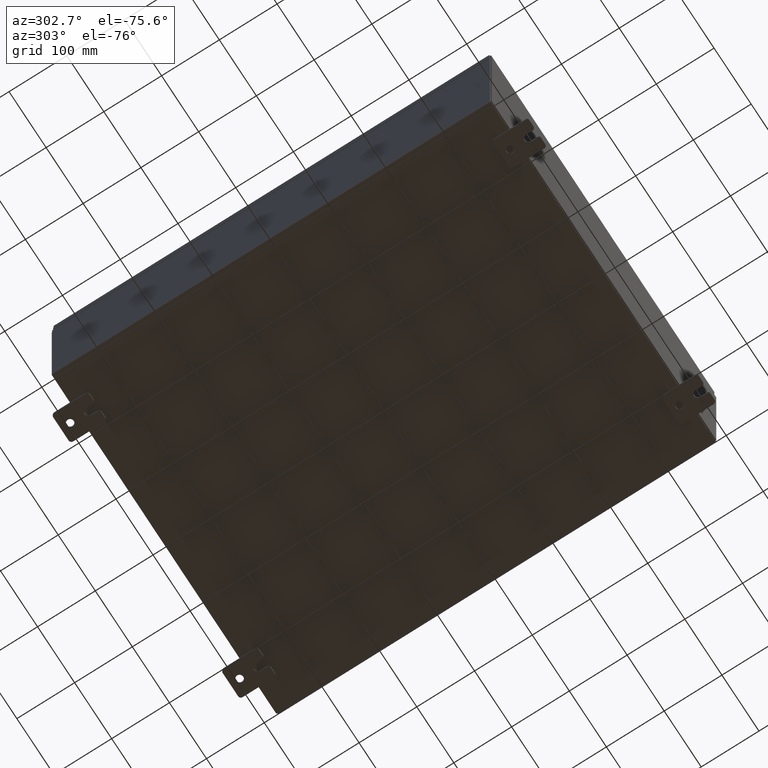
[diagram: clean part render]
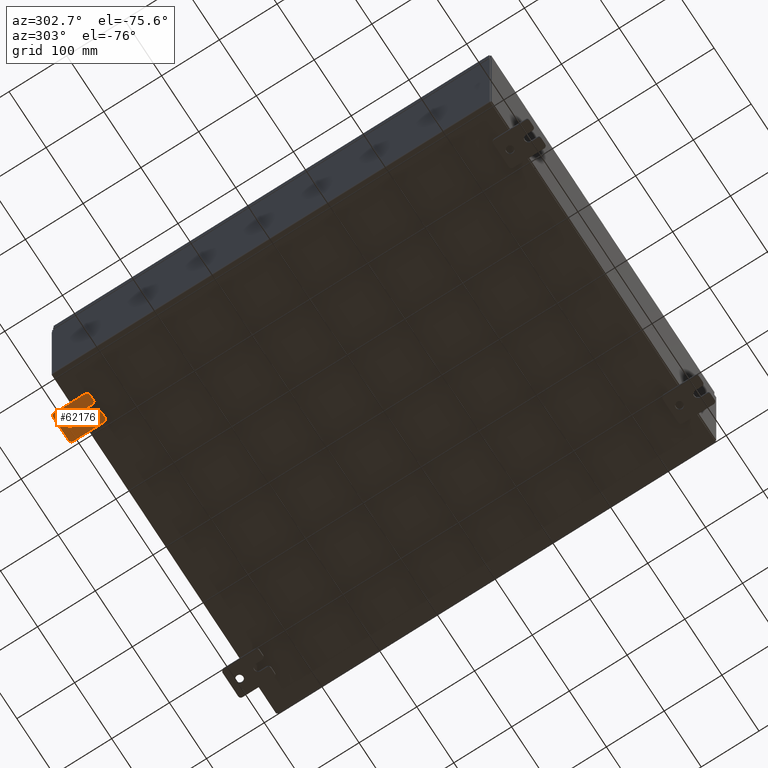
[diagram: same view with one face highlighted and labeled with its STEP entity id]
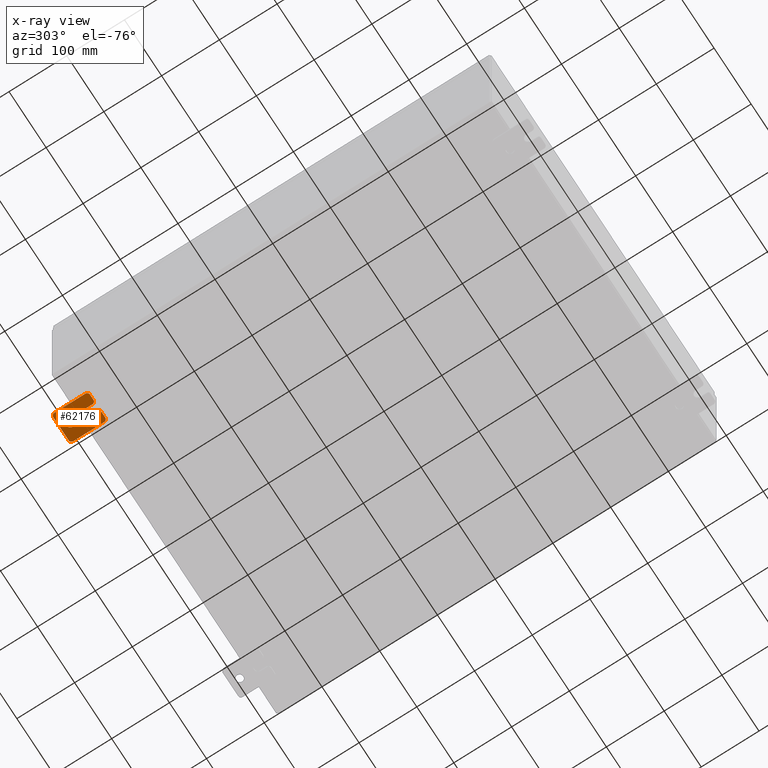
[diagram: x-ray of the same camera — body ghosted, the highlighted face saturated]
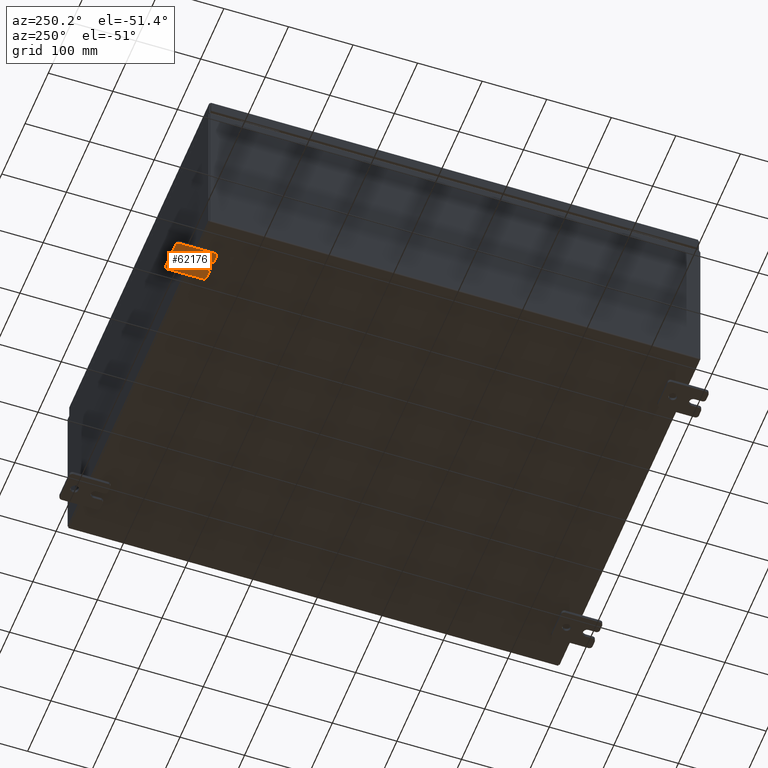
[diagram: same view with one face highlighted and labeled with its STEP entity id]
A machine part, auxiliary view. The second image highlights one B-rep face of the part: STEP entity #62176.
The next image is the same camera in x-ray: the body ghosted, the highlighted face saturated — about 0% of this face is hidden behind the body in this view.
A second angle (auxiliary view) of the same face is appended — the face is thin or edge-on in the first view.
In plain terms, the highlighted planar face has unit normal (0, 0, 1).
Its self-contained STEP definition (entity closure, byte-faithful):
#374 = ORIENTED_EDGE ( 'NONE', *, *, #29772, .T. ) ;
#427 = CIRCLE ( 'NONE', #10709, 0.2499999999999999200 ) ;
#1427 = AXIS2_PLACEMENT_3D ( 'NONE', #54958, #4538, #31204 ) ;
#1960 = CIRCLE ( 'NONE', #24511, 0.1900000000000011100 ) ;
#2434 = ORIENTED_EDGE ( 'NONE', *, *, #48936, .F. ) ;
#2620 = ORIENTED_EDGE ( 'NONE', *, *, #35389, .F. ) ;
#2788 = EDGE_CURVE ( 'NONE', #44890, #25598, #42414, .T. ) ;
#3155 = CARTESIAN_POINT ( 'NONE',  ( -0.1879999999999997800, -1.250000000000005600, -1.000000000000006200 ) ) ;
#4411 = EDGE_CURVE ( 'NONE', #62870, #14577, #35068, .T. ) ;
#4538 = DIRECTION ( 'NONE',  ( -1.000000000000000000, -0.0000000000000000000, 0.0000000000000000000 ) ) ;
#4834 = ORIENTED_EDGE ( 'NONE', *, *, #2788, .F. ) ;
#5168 = CARTESIAN_POINT ( 'NONE',  ( -0.1880000000000004700, -1.060000000000003400, -0.2499999999999994400 ) ) ;
#5798 = EDGE_CURVE ( 'NONE', #22748, #57081, #26620, .T. ) ;
#5935 = VECTOR ( 'NONE', #52695, 39.37007874015748100 ) ;
#6024 = DIRECTION ( 'NONE',  ( -1.000000000000000000, -0.0000000000000000000, 0.0000000000000000000 ) ) ;
#6175 = ORIENTED_EDGE ( 'NONE', *, *, #26334, .T. ) ;
#6201 = CARTESIAN_POINT ( 'NONE',  ( -0.1880000000000010000, 0.6249999999999992200, -7.703811342100550500E-020 ) ) ;
#6605 = LINE ( 'NONE', #45254, #19814 ) ;
#7321 = AXIS2_PLACEMENT_3D ( 'NONE', #26987, #21803, #36910 ) ;
#7538 = LINE ( 'NONE', #47717, #5935 ) ;
#8000 = CARTESIAN_POINT ( 'NONE',  ( -0.1879999999999997800, -1.250000000000004700, -0.4400000000000002200 ) ) ;
#9768 = DIRECTION ( 'NONE',  ( -1.000000000000000000, 6.523827964459549700E-016, 5.163192708025532000E-017 ) ) ;
#10706 = LINE ( 'NONE', #52826, #63356 ) ;
#10709 = AXIS2_PLACEMENT_3D ( 'NONE', #6201, #40810, #11202 ) ;
#10807 = CARTESIAN_POINT ( 'NONE',  ( -0.1880000000000001900, -0.6249999999999992200, 0.2500000000000005000 ) ) ;
#10841 = DIRECTION ( 'NONE',  ( 0.0000000000000000000, -1.639108796198553600E-015, -1.000000000000000000 ) ) ;
#11202 = DIRECTION ( 'NONE',  ( 0.0000000000000000000, 0.0000000000000000000, -1.000000000000000000 ) ) ;
#11275 = CARTESIAN_POINT ( 'NONE',  ( -0.1879999999999997800, 1.249999999999997600, 0.9999999999999951200 ) ) ;
#11513 = CARTESIAN_POINT ( 'NONE',  ( -0.1879999999999997800, -1.060000000000002100, 0.4400000000000016700 ) ) ;
#12080 = EDGE_CURVE ( 'NONE', #57412, #23712, #10706, .T. ) ;
#12317 = DIRECTION ( 'NONE',  ( 1.000000000000000000, -0.0000000000000000000, -5.163192708025532000E-017 ) ) ;
#12320 = CARTESIAN_POINT ( 'NONE',  ( -0.1879999999999997800, -1.060000000000001600, 0.8099999999999978300 ) ) ;
#12898 = ORIENTED_EDGE ( 'NONE', *, *, #57688, .F. ) ;
#12905 = CARTESIAN_POINT ( 'NONE',  ( -0.1879999999999997800, 1.059999999999993400, -1.000000000000010000 ) ) ;
#13832 = VECTOR ( 'NONE', #37798, 39.37007874015748100 ) ;
#14577 = VERTEX_POINT ( 'NONE', #5168 ) ;
#14708 = EDGE_CURVE ( 'NONE', #61397, #14577, #1960, .T. ) ;
#15571 = EDGE_CURVE ( 'NONE', #24017, #21118, #6605, .T. ) ;
#15707 = CARTESIAN_POINT ( 'NONE',  ( -0.1880000000000001900, -0.6249999999999992200, -0.2499999999999993900 ) ) ;
#16071 = ORIENTED_EDGE ( 'NONE', *, *, #14708, .T. ) ;
#16433 = ORIENTED_EDGE ( 'NONE', *, *, #15571, .F. ) ;
#16549 = DIRECTION ( 'NONE',  ( 0.0000000000000000000, 0.0000000000000000000, -1.000000000000000000 ) ) ;
#16580 = CARTESIAN_POINT ( 'NONE',  ( -0.1879999999999997800, 1.059999999999996500, 0.9999999999999953400 ) ) ;
#17131 = CARTESIAN_POINT ( 'NONE',  ( -0.1880000000000001900, -0.6249999999999992200, -0.2499999999999998600 ) ) ;
#17330 = DIRECTION ( 'NONE',  ( 0.0000000000000000000, 7.189073667537492800E-016, -1.000000000000000000 ) ) ;
#17558 = CARTESIAN_POINT ( 'NONE',  ( -0.1879999999999997800, 1.249999999999994700, -0.8100000000000092700 ) ) ;
#17788 = AXIS2_PLACEMENT_3D ( 'NONE', #22072, #56621, #27035 ) ;
#19814 = VECTOR ( 'NONE', #30780, 39.37007874015748100 ) ;
#20157 = ORIENTED_EDGE ( 'NONE', *, *, #12080, .F. ) ;
#21118 = VERTEX_POINT ( 'NONE', #36392 ) ;
#21306 = ORIENTED_EDGE ( 'NONE', *, *, #56827, .T. ) ;
#21803 = DIRECTION ( 'NONE',  ( 1.000000000000000000, 0.0000000000000000000, -0.0000000000000000000 ) ) ;
#21969 = VECTOR ( 'NONE', #35895, 39.37007874015748100 ) ;
#22072 = CARTESIAN_POINT ( 'NONE',  ( -0.1879999999999997800, 1.059999999999996300, 0.8099999999999938400 ) ) ;
#22155 = CARTESIAN_POINT ( 'NONE',  ( -0.1880000000000010000, 0.6249999999999992200, 0.2499999999999999200 ) ) ;
#22276 = CARTESIAN_POINT ( 'NONE',  ( -0.1879999999999997800, -1.060000000000004500, -1.000000000000006400 ) ) ;
#22748 = VERTEX_POINT ( 'NONE', #22276 ) ;
#22977 = ORIENTED_EDGE ( 'NONE', *, *, #4411, .F. ) ;
#23252 = DIRECTION ( 'NONE',  ( 6.556435184794182400E-016, 1.000000000000000000, 0.0000000000000000000 ) ) ;
#23312 = VERTEX_POINT ( 'NONE', #22155 ) ;
#23712 = VERTEX_POINT ( 'NONE', #10807 ) ;
#24017 = VERTEX_POINT ( 'NONE', #17558 ) ;
#24511 = AXIS2_PLACEMENT_3D ( 'NONE', #35673, #6024, #40655 ) ;
#25598 = VERTEX_POINT ( 'NONE', #32067 ) ;
#26334 = EDGE_CURVE ( 'NONE', #31571, #23312, #45483, .T. ) ;
#26620 = CIRCLE ( 'NONE', #1427, 0.1900000000000011100 ) ;
#26987 = CARTESIAN_POINT ( 'NONE',  ( -0.1879999999999997800, 0.0000000000000000000, 0.0000000000000000000 ) ) ;
#27035 = DIRECTION ( 'NONE',  ( 0.0000000000000000000, 0.0000000000000000000, -1.000000000000000000 ) ) ;
#27170 = CIRCLE ( 'NONE', #57730, 0.1900000000000011100 ) ;
#28506 = EDGE_CURVE ( 'NONE', #59071, #21118, #50758, .T. ) ;
#28833 = ORIENTED_EDGE ( 'NONE', *, *, #60505, .T. ) ;
#29605 = DIRECTION ( 'NONE',  ( -1.000000000000000000, -0.0000000000000000000, 0.0000000000000000000 ) ) ;
#29772 = EDGE_CURVE ( 'NONE', #23312, #31571, #427, .T. ) ;
#30780 = DIRECTION ( 'NONE',  ( 0.0000000000000000000, 1.639108796198553600E-015, 1.000000000000000000 ) ) ;
#30963 = FACE_OUTER_BOUND ( 'NONE', #46139, .T. ) ;
#31204 = DIRECTION ( 'NONE',  ( 0.0000000000000000000, 0.0000000000000000000, -1.000000000000000000 ) ) ;
#31571 = VERTEX_POINT ( 'NONE', #52903 ) ;
#31961 = PLANE ( 'NONE',  #7321 ) ;
#32067 = CARTESIAN_POINT ( 'NONE',  ( -0.1879999999999997800, -1.250000000000003100, 0.4400000000000020000 ) ) ;
#35068 = LINE ( 'NONE', #15707, #21969 ) ;
#35389 = EDGE_CURVE ( 'NONE', #59071, #60490, #61993, .T. ) ;
#35578 = CIRCLE ( 'NONE', #63222, 0.1900000000000011400 ) ;
#35673 = CARTESIAN_POINT ( 'NONE',  ( -0.1879999999999997800, -1.060000000000003400, -0.4400000000000005000 ) ) ;
#35895 = DIRECTION ( 'NONE',  ( -6.556435184794182400E-016, -1.000000000000000000, -1.639108796198545600E-016 ) ) ;
#36392 = CARTESIAN_POINT ( 'NONE',  ( -0.1879999999999997800, 1.249999999999997300, 0.8099999999999935000 ) ) ;
#36910 = DIRECTION ( 'NONE',  ( -0.0000000000000000000, 0.0000000000000000000, -1.000000000000000000 ) ) ;
#37226 = VECTOR ( 'NONE', #40890, 39.37007874015748100 ) ;
#37798 = DIRECTION ( 'NONE',  ( 0.0000000000000000000, 1.000000000000000000, -1.639108796198558100E-015 ) ) ;
#38968 = AXIS2_PLACEMENT_3D ( 'NONE', #12320, #46894, #17330 ) ;
#39394 = CARTESIAN_POINT ( 'NONE',  ( -0.1880000000000001900, -0.6249999999999992200, 6.829619984160658000E-017 ) ) ;
#40655 = DIRECTION ( 'NONE',  ( 0.0000000000000000000, 0.0000000000000000000, -1.000000000000000000 ) ) ;
#40810 = DIRECTION ( 'NONE',  ( 1.000000000000000000, -0.0000000000000000000, -5.163192708025532000E-017 ) ) ;
#40890 = DIRECTION ( 'NONE',  ( 0.0000000000000000000, -1.000000000000000000, 1.639108796198558100E-015 ) ) ;
#41669 = ORIENTED_EDGE ( 'NONE', *, *, #47628, .F. ) ;
#41905 = CARTESIAN_POINT ( 'NONE',  ( -0.1880000000000010000, 0.6249999999999992200, -7.703811342100550500E-020 ) ) ;
#42414 = LINE ( 'NONE', #45426, #53988 ) ;
#42560 = FACE_BOUND ( 'NONE', #53303, .T. ) ;
#44345 = DIRECTION ( 'NONE',  ( -6.829619984160660000E-016, -1.000000000000000000, 0.0000000000000000000 ) ) ;
#44890 = VERTEX_POINT ( 'NONE', #62106 ) ;
#45254 = CARTESIAN_POINT ( 'NONE',  ( -0.1879999999999997800, 1.249999999999994200, -1.000000000000010400 ) ) ;
#45426 = CARTESIAN_POINT ( 'NONE',  ( -0.1879999999999997800, -1.250000000000002200, 0.9999999999999992200 ) ) ;
#45483 = CIRCLE ( 'NONE', #56178, 0.2499999999999999200 ) ;
#45685 = CARTESIAN_POINT ( 'NONE',  ( -0.1879999999999997800, -1.060000000000001200, 0.9999999999999988900 ) ) ;
#45724 = ORIENTED_EDGE ( 'NONE', *, *, #28506, .T. ) ;
#46114 = DIRECTION ( 'NONE',  ( -1.000000000000000000, -0.0000000000000000000, 0.0000000000000000000 ) ) ;
#46139 = EDGE_LOOP ( 'NONE', ( #4834, #50636, #2620, #45724, #16433, #21306, #41669, #58567, #2434, #16071, #22977, #12898, #20157, #28833 ) ) ;
#46890 = DIRECTION ( 'NONE',  ( 0.0000000000000000000, 0.0000000000000000000, -1.000000000000000000 ) ) ;
#46894 = DIRECTION ( 'NONE',  ( -1.000000000000000000, -0.0000000000000000000, 0.0000000000000000000 ) ) ;
#47628 = EDGE_CURVE ( 'NONE', #22748, #54864, #51685, .T. ) ;
#47717 = CARTESIAN_POINT ( 'NONE',  ( -0.1879999999999997800, -1.250000000000002200, 0.9999999999999992200 ) ) ;
#48911 = CIRCLE ( 'NONE', #61892, 0.2499999999999999200 ) ;
#48936 = EDGE_CURVE ( 'NONE', #61397, #57081, #7538, .T. ) ;
#50636 = ORIENTED_EDGE ( 'NONE', *, *, #53600, .T. ) ;
#50668 = CARTESIAN_POINT ( 'NONE',  ( -0.1879999999999997800, -1.250000000000005300, -0.8100000000000047200 ) ) ;
#50758 = CIRCLE ( 'NONE', #17788, 0.1900000000000011100 ) ;
#51685 = LINE ( 'NONE', #3155, #13832 ) ;
#52607 = CARTESIAN_POINT ( 'NONE',  ( -0.1880000000000004700, -1.060000000000002100, 0.2500000000000005000 ) ) ;
#52695 = DIRECTION ( 'NONE',  ( 0.0000000000000000000, -1.639108796198553600E-015, -1.000000000000000000 ) ) ;
#52826 = CARTESIAN_POINT ( 'NONE',  ( -0.1880000000000005800, -1.250000000000003800, 0.2500000000000005000 ) ) ;
#52903 = CARTESIAN_POINT ( 'NONE',  ( -0.1880000000000010000, 0.6249999999999992200, -0.2499999999999999200 ) ) ;
#53303 = EDGE_LOOP ( 'NONE', ( #6175, #374 ) ) ;
#53600 = EDGE_CURVE ( 'NONE', #44890, #60490, #61417, .T. ) ;
#53988 = VECTOR ( 'NONE', #10841, 39.37007874015748100 ) ;
#54864 = VERTEX_POINT ( 'NONE', #12905 ) ;
#54958 = CARTESIAN_POINT ( 'NONE',  ( -0.1879999999999997800, -1.060000000000004100, -0.8100000000000050500 ) ) ;
#56178 = AXIS2_PLACEMENT_3D ( 'NONE', #41905, #12317, #46890 ) ;
#56621 = DIRECTION ( 'NONE',  ( -1.000000000000000000, -0.0000000000000000000, 0.0000000000000000000 ) ) ;
#56827 = EDGE_CURVE ( 'NONE', #24017, #54864, #27170, .T. ) ;
#57081 = VERTEX_POINT ( 'NONE', #50668 ) ;
#57412 = VERTEX_POINT ( 'NONE', #52607 ) ;
#57688 = EDGE_CURVE ( 'NONE', #23712, #62870, #48911, .T. ) ;
#57730 = AXIS2_PLACEMENT_3D ( 'NONE', #59243, #29605, #64222 ) ;
#58567 = ORIENTED_EDGE ( 'NONE', *, *, #5798, .T. ) ;
#59071 = VERTEX_POINT ( 'NONE', #16580 ) ;
#59243 = CARTESIAN_POINT ( 'NONE',  ( -0.1879999999999997800, 1.059999999999993600, -0.8100000000000089400 ) ) ;
#60490 = VERTEX_POINT ( 'NONE', #45685 ) ;
#60505 = EDGE_CURVE ( 'NONE', #57412, #25598, #35578, .T. ) ;
#61397 = VERTEX_POINT ( 'NONE', #8000 ) ;
#61417 = CIRCLE ( 'NONE', #38968, 0.1900000000000011100 ) ;
#61892 = AXIS2_PLACEMENT_3D ( 'NONE', #39394, #9768, #44345 ) ;
#61993 = LINE ( 'NONE', #11275, #37226 ) ;
#62106 = CARTESIAN_POINT ( 'NONE',  ( -0.1879999999999997800, -1.250000000000002400, 0.8099999999999980500 ) ) ;
#62176 = ADVANCED_FACE ( 'NONE', ( #42560, #30963 ), #31961, .F. ) ;
#62870 = VERTEX_POINT ( 'NONE', #17131 ) ;
#63222 = AXIS2_PLACEMENT_3D ( 'NONE', #11513, #46114, #16549 ) ;
#63356 = VECTOR ( 'NONE', #23252, 39.37007874015748100 ) ;
#64222 = DIRECTION ( 'NONE',  ( 0.0000000000000000000, 0.0000000000000000000, -1.000000000000000000 ) ) ;